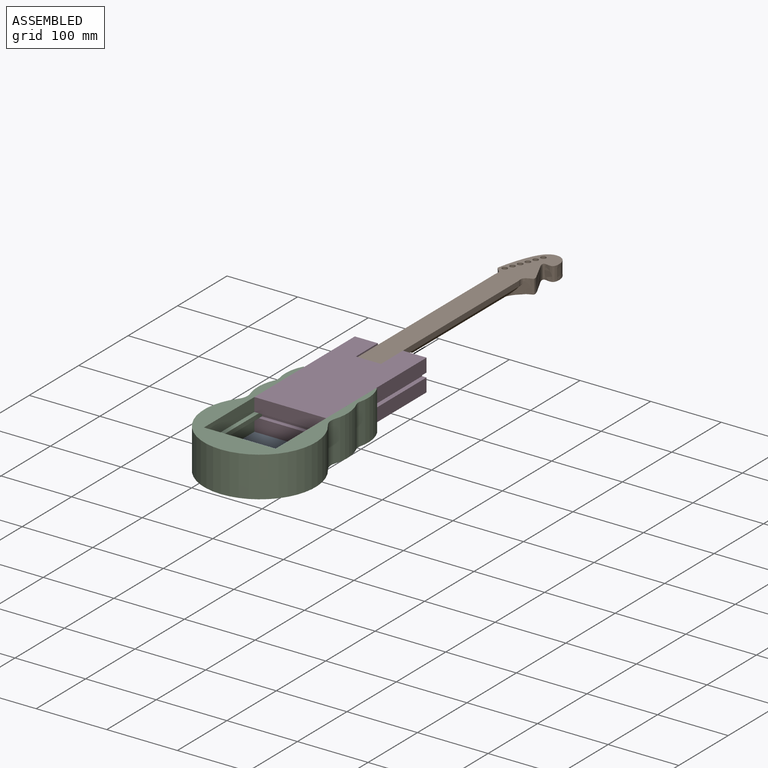
[diagram: assembled view]
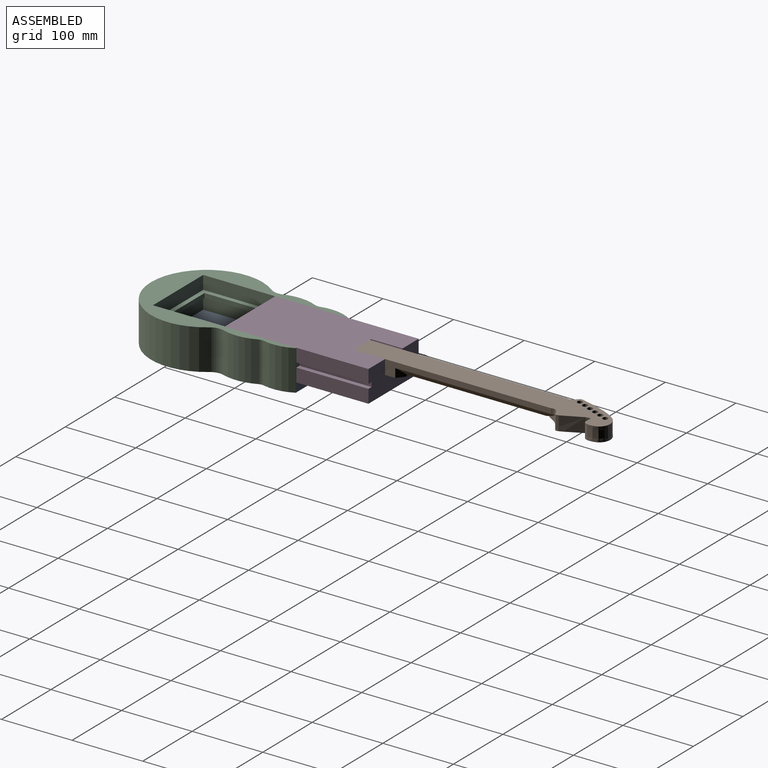
[diagram: assembled view, second angle]
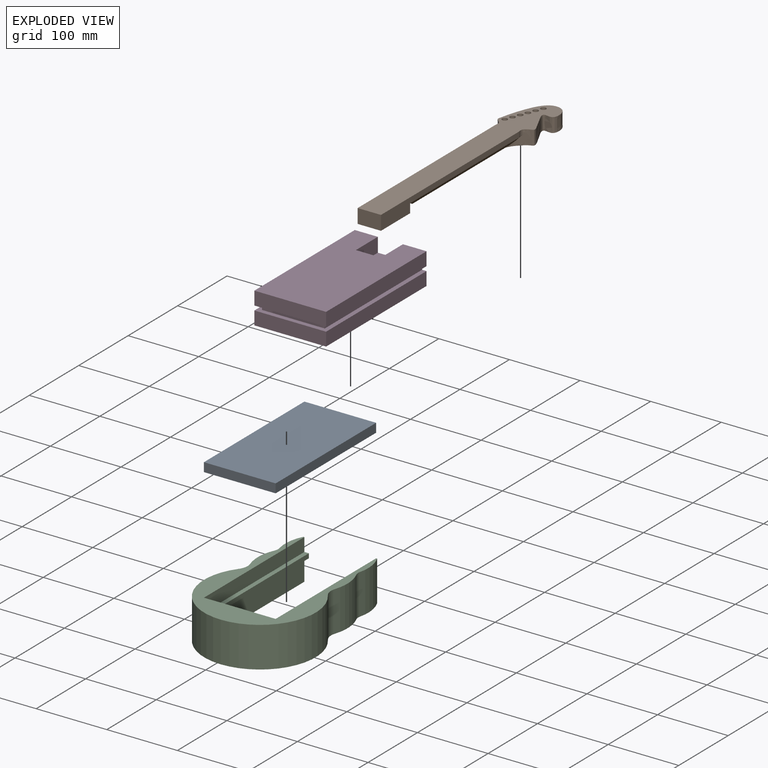
[diagram: exploded view]
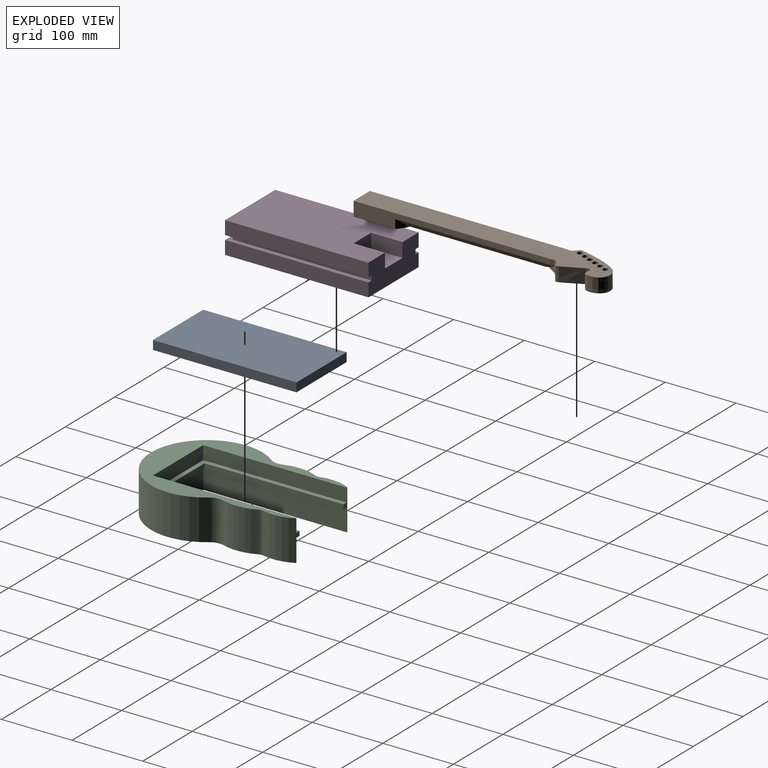
[diagram: exploded view, second angle]
ASSEMBLY  parts=4 mates=3
PART A: 6 faces, bbox 101.6x203.2x12.7 mm
  f0: plane 203.2x12.7mm, normal (-1,0,0), area 2580.6mm2, adj f1,f3,f4,f5
  f1: plane 101.6x12.7mm, normal (0,-1,0), area 1290.3mm2, adj f0,f2,f4,f5
  f2: plane 203.2x12.7mm, normal (1,0,0), area 2580.6mm2, adj f1,f3,f4,f5
  f3: plane 101.6x12.7mm, normal (0,1,0), area 1290.3mm2, adj f0,f2,f4,f5
  f4: plane 203.2x101.6mm, normal (0,0,-1), area 20645.1mm2, adj f0,f1,f2,f3
  f5: plane 203.2x101.6mm, normal (0,0,1), area 20645.1mm2, adj f0,f1,f2,f3
PART B: 22 faces, bbox 59.6x366x23.2 mm
  f0: extruded ~81.35x52.49mm, area 4050.7mm2, adj f1,f9,f10,f11,f12,f18,f20
  f1: plane 279.4x20.32mm, normal (-1,0,0), area 2896.4mm2, adj f0,f2,f10,f13,f14,f17
  f2: plane 33.02x20.32mm, normal (0,-1,0), area 671mm2, adj f1,f9,f10,f14
  f3: cylinder r=3.8mm len=20.32mm, axis (0,0,-1), area 485.7mm2, adj f10,f12
  f4: cylinder r=3.8mm len=20.32mm, axis (0,0,-1), area 485.7mm2, adj f10,f12
  f5: cylinder r=3.8mm len=20.32mm, axis (0,0,-1), area 485.7mm2, adj f10,f12
  f6: cylinder r=3.8mm len=20.32mm, axis (0,0,-1), area 485.7mm2, adj f10,f12
  f7: cylinder r=3.8mm len=20.32mm, axis (0,0,-1), area 485.7mm2, adj f10,f12
  f8: cylinder r=3.8mm len=20.32mm, axis (0,0,-1), area 485.7mm2, adj f10,f12
  f9: plane 279.4x20.32mm, normal (1,0,0), area 2877.5mm2, adj f0,f2,f10,f13,f14,f15
  f10: plane 363.11x55.32mm, normal (0,0,1), area 11910.7mm2, adj f0,f1,f2,f3,f4,f5,f6,f7
  f11: extruded ~36.81x24.08mm, area 746.8mm2, adj f0,f12,f19
  f12: plane 97.75x55.32mm, normal (0,0,-1), area 2776.2mm2, adj f0,f3,f4,f5,f6,f7,f8,f11
  f13: extruded ~33.02x12.7mm, area 490.9mm2, adj f1,f9,f14,f16
  f14: plane 69.47x33.02mm, normal (0,0,-1), area 2162.5mm2, adj f1,f2,f9,f13
  f15: plane 221.36x8.52mm, normal (0.77,0,-0.64), area 2097.2mm2, adj f9,f16,f19,f20,f21
  f16: bspline ~42.91x17.72mm, area 301.9mm2, adj f13,f15,f17,f21
  f17: plane 221.87x10.51mm, normal (-0.77,0,-0.64), area 2089.3mm2, adj f1,f16,f18,f19,f21
  f18: bspline ~22.66x10.81mm, area 29.9mm2, adj f0,f17,f19
  f19: bspline ~49.32x32.13mm, area 429.1mm2, adj f11,f15,f17,f18,f20,f21
  f20: bspline ~11.46x7.62mm, area 17.7mm2, adj f0,f15,f19
  f21: plane 197.04x20.69mm, normal (0,0,-1), area 3796.6mm2, adj f15,f16,f17,f19
PART C: 24 faces, bbox 157.9x241.5x57.2 mm
  f0: plane 203.2x19.05mm, normal (-1,0,0), area 3871mm2, adj f17,f18,f19,f22
  f1: plane 88.9x6.35mm, normal (0,1,0), area 564.5mm2, adj f3,f21,f22,f23
  f2: plane 101.6x31.75mm, normal (0,1,0), area 3225.8mm2, adj f4,f6,f20,f21
  f3: plane 196.85x6.35mm, normal (1,0,0), area 1250mm2, adj f1,f7,f21,f22
  f4: plane 203.2x31.75mm, normal (-1,0,0), area 6451.6mm2, adj f2,f17,f20,f21
  f5: plane 203.2x19.05mm, normal (1,0,0), area 3871mm2, adj f7,f18,f19,f22
  f6: plane 203.2x31.75mm, normal (1,0,0), area 6451.6mm2, adj f2,f7,f20,f21
  f7: plane 57.15x7.7mm, normal (0,1,0), area 117.5mm2, adj f3,f5,f6,f8,f19,f20,f21,f22
  f8: cylinder r=58.82mm len=57.15mm, axis (0,0,-1), area 2444.8mm2, adj f7,f9,f19,f20
  f9: cylinder r=12.7mm len=57.15mm, axis (0,0,-1), area 488.6mm2, adj f8,f10,f19,f20
  f10: cylinder r=63.5mm len=57.15mm, axis (0,0,-1), area 2729mm2, adj f9,f11,f19,f20
  f11: cylinder r=20.32mm len=57.15mm, axis (0,0,-1), area 1124.7mm2, adj f10,f12,f19,f20
  f12: cylinder r=78.95mm len=157.91mm, axis (0,0,-1), area 19981mm2, adj f11,f13,f19,f20
  f13: cylinder r=20.32mm len=57.15mm, axis (0,0,-1), area 1124.7mm2, adj f12,f14,f19,f20
  f14: cylinder r=63.5mm len=57.15mm, axis (0,0,-1), area 2729mm2, adj f13,f15,f19,f20
  f15: cylinder r=12.7mm len=57.15mm, axis (0,0,-1), area 488.6mm2, adj f14,f16,f19,f20
  f16: cylinder r=58.82mm len=57.15mm, axis (0,0,-1), area 2444.8mm2, adj f15,f17,f19,f20
  f17: plane 57.15x7.7mm, normal (0,1,0), area 117.5mm2, adj f0,f4,f16,f19,f20,f21,f22,f23
  f18: plane 101.6x19.05mm, normal (0,1,0), area 1935.5mm2, adj f0,f5,f19,f22
  f19: plane 241.48x157.91mm, normal (0,0,1), area 9870.7mm2, adj f0,f5,f7,f8,f9,f10,f11,f12
  f20: plane 241.48x157.91mm, normal (0,0,-1), area 9870.7mm2, adj f2,f4,f6,f7,f8,f9,f10,f11
  f21: plane 203.2x101.6mm, normal (0,0,-1), area 3145.2mm2, adj f1,f2,f3,f4,f6,f7,f17,f23
  f22: plane 203.2x101.6mm, normal (0,0,1), area 3145.2mm2, adj f0,f1,f3,f5,f7,f17,f18,f23
  f23: plane 196.85x6.35mm, normal (-1,0,0), area 1250mm2, adj f1,f17,f21,f22
PART D: 18 faces, bbox 101.6x203.2x44.5 mm
  f0: plane 203.2x19.05mm, normal (1,0,0), area 3871mm2, adj f1,f5,f7,f14
  f1: plane 101.6x44.45mm, normal (0,1,0), area 3712.9mm2, adj f0,f3,f4,f5,f6,f8,f9,f10
  f2: plane 101.6x19.05mm, normal (0,-1,0), area 1935.5mm2, adj f3,f4,f8,f13
  f3: plane 203.2x19.05mm, normal (1,0,0), area 3871mm2, adj f1,f2,f8,f13
  f4: plane 203.2x19.05mm, normal (-1,0,0), area 3871mm2, adj f1,f2,f8,f13
  f5: plane 203.2x101.6mm, normal (0,0,1), area 19064.5mm2, adj f0,f1,f6,f7,f9,f10,f11
  f6: plane 203.2x19.05mm, normal (-1,0,0), area 3871mm2, adj f1,f5,f7,f14
  f7: plane 101.6x19.05mm, normal (0,-1,0), area 1935.5mm2, adj f0,f5,f6,f14
  f8: plane 203.2x101.6mm, normal (0,0,-1), area 20645.1mm2, adj f1,f2,f3,f4
  f9: plane 44.45x20.32mm, normal (-1,0,0), area 903.2mm2, adj f1,f5,f11,f12
  f10: plane 44.45x20.32mm, normal (1,0,0), area 903.2mm2, adj f1,f5,f11,f12
  f11: plane 35.56x20.32mm, normal (0,1,0), area 722.6mm2, adj f5,f9,f10,f12
  f12: plane 44.45x35.56mm, normal (0,0,1), area 1580.6mm2, adj f1,f9,f10,f11
  f13: plane 203.2x101.6mm, normal (0,0,1), area 3145.2mm2, adj f1,f2,f3,f4,f15,f16,f17
  f14: plane 203.2x101.6mm, normal (0,0,-1), area 3145.2mm2, adj f0,f1,f6,f7,f15,f16,f17
  f15: plane 196.85x6.35mm, normal (-1,0,0), area 1250mm2, adj f1,f13,f14,f16
  f16: plane 88.9x6.35mm, normal (0,-1,0), area 564.5mm2, adj f13,f14,f15,f17
  f17: plane 196.85x6.35mm, normal (1,0,0), area 1250mm2, adj f1,f13,f14,f16
PLACE A t=(118.37,-155.55,-117.15)mm
PLACE B t=(395.38,143.31,-80.32)mm
PLACE C t=(118.37,-155.55,-117.15)mm
PLACE D t=(473.97,-53.54,-117.15)mm
MATE slider D.f1 <-> C.f7  axis (0,1,0) through (67.57,48.06,-91.75)mm
MATE fastened A.f4 <-> C.f20  axis (0,0,-1) through (169.17,-257.15,-129.85)mm
MATE fastened B.f10 <-> D.f5  axis (0,0,1) through (135.71,3.61,-72.7)mm
